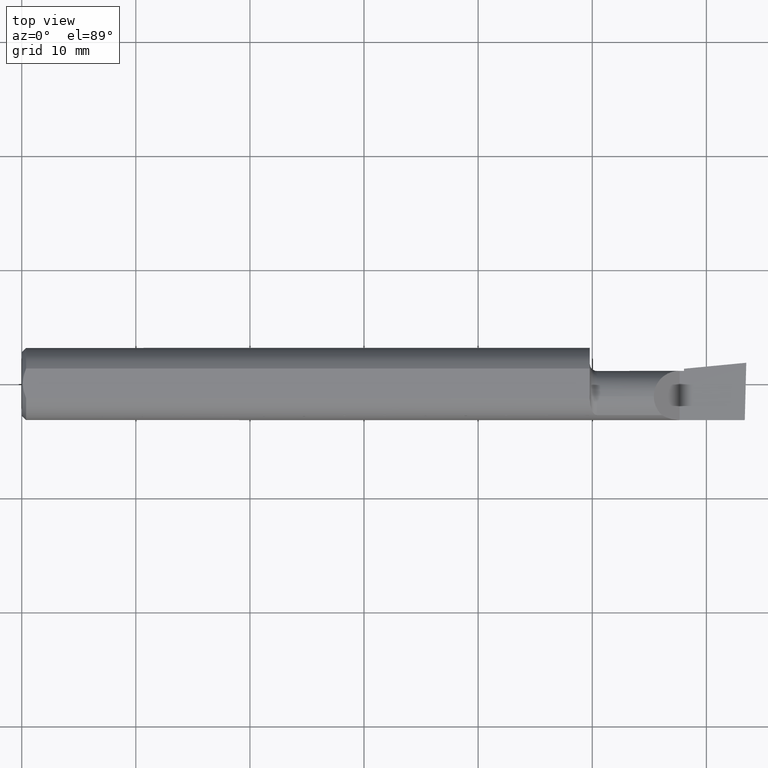
[diagram: clean part render]
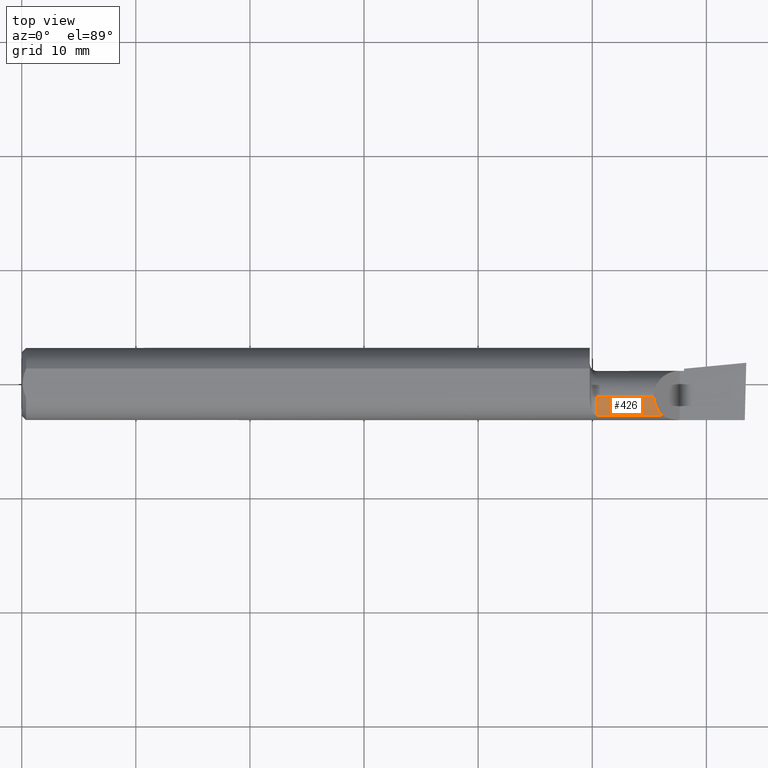
[diagram: same view with one face highlighted and labeled with its STEP entity id]
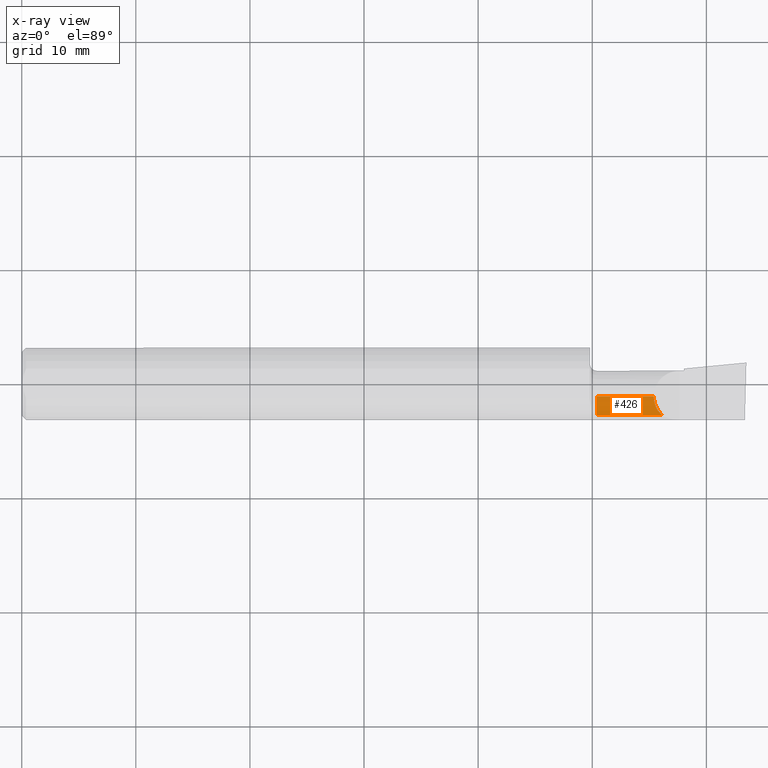
[diagram: x-ray of the same camera — body ghosted, the highlighted face saturated]
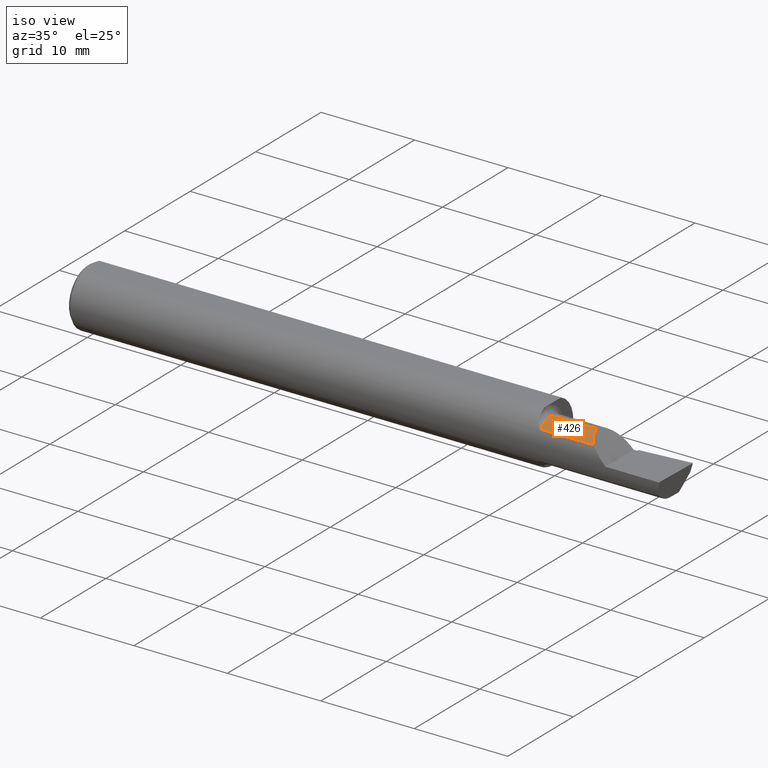
[diagram: same view with one face highlighted and labeled with its STEP entity id]
A machine part, top view. The second image highlights one B-rep face of the part: STEP entity #426.
The next image is the same camera in x-ray: the body ghosted, the highlighted face saturated — about 0% of this face is hidden behind the body in this view.
A second angle (iso view) of the same face is appended — the face is thin or edge-on in the first view.
In plain terms, the highlighted cylindrical surface (edge-blend (fillet) strip) has radius 2.2644 mm, axis along (-1, -0, -0).
Its self-contained STEP definition (entity closure, byte-faithful):
#5 = EDGE_CURVE ( 'NONE', #214, #277, #220, .T. ) ;
#6 = CARTESIAN_POINT ( 'NONE',  ( 1.985000000000000098, -0.04399999999999999745, 0.08914999999999995151 ) ) ;
#38 = CARTESIAN_POINT ( 'NONE',  ( 0.0000000000000000000, -0.04399999999999999745, 0.08914999999999997926 ) ) ;
#40 = CARTESIAN_POINT ( 'NONE',  ( 0.0000000000000000000, -0.04399999999999999745, 0.0000000000000000000 ) ) ;
#47 = CYLINDRICAL_SURFACE ( 'NONE', #397, 0.08914999999999997926 ) ;
#53 = EDGE_CURVE ( 'NONE', #387, #214, #674, .T. ) ;
#91 = LINE ( 'NONE', #38, #205 ) ;
#107 = EDGE_CURVE ( 'NONE', #277, #349, #91, .T. ) ;
#173 = DIRECTION ( 'NONE',  ( 0.0000000000000000000, 0.0000000000000000000, 1.000000000000000000 ) ) ;
#175 = DIRECTION ( 'NONE',  ( -1.000000000000000000, -0.0000000000000000000, -0.0000000000000000000 ) ) ;
#185 = AXIS2_PLACEMENT_3D ( 'NONE', #559, #175, #173 ) ;
#192 = EDGE_LOOP ( 'NONE', ( #408, #542, #479, #385 ) ) ;
#205 = VECTOR ( 'NONE', #221, 39.37007874015748143 ) ;
#214 = VERTEX_POINT ( 'NONE', #680 ) ;
#220 =( BOUNDED_CURVE ( )  B_SPLINE_CURVE ( 3, ( #311, #253, #370, #581 ),
 .UNSPECIFIED., .F., .T. ) 
 B_SPLINE_CURVE_WITH_KNOTS ( ( 4, 4 ),
 ( 5.469179596148854294, 6.283185307179586232 ),
 .UNSPECIFIED. ) 
 CURVE ( )  GEOMETRIC_REPRESENTATION_ITEM ( )  RATIONAL_B_SPLINE_CURVE ( ( 1.000000000000000000, 0.9455409277260484746, 0.9455409277260484746, 1.000000000000000000 ) ) 
 REPRESENTATION_ITEM ( '' )  );
#221 = DIRECTION ( 'NONE',  ( -1.000000000000000000, -0.0000000000000000000, -0.0000000000000000000 ) ) ;
#241 = EDGE_CURVE ( 'NONE', #387, #349, #421, .T. ) ;
#253 = CARTESIAN_POINT ( 'NONE',  ( 2.190699866855738698, -0.09173194857106663214, 0.07930013314426077875 ) ) ;
#277 = VERTEX_POINT ( 'NONE', #500 ) ;
#311 = CARTESIAN_POINT ( 'NONE',  ( 2.208790356734260829, -0.1088159090909090465, 0.06120964326573886255 ) ) ;
#349 = VERTEX_POINT ( 'NONE', #6 ) ;
#361 = CARTESIAN_POINT ( 'NONE',  ( 1.985000000000000098, -0.1088159090909094073, 0.06120964326573843234 ) ) ;
#370 = CARTESIAN_POINT ( 'NONE',  ( 2.180849999999999067, -0.06888227343086716914, 0.08914999999999999314 ) ) ;
#374 = DIRECTION ( 'NONE',  ( 1.000000000000000000, 0.0000000000000000000, 0.0000000000000000000 ) ) ;
#385 = ORIENTED_EDGE ( 'NONE', *, *, #53, .T. ) ;
#387 = VERTEX_POINT ( 'NONE', #361 ) ;
#397 = AXIS2_PLACEMENT_3D ( 'NONE', #40, #402, #728 ) ;
#402 = DIRECTION ( 'NONE',  ( -1.000000000000000000, -0.0000000000000000000, -0.0000000000000000000 ) ) ;
#408 = ORIENTED_EDGE ( 'NONE', *, *, #5, .T. ) ;
#421 = CIRCLE ( 'NONE', #185, 0.08914999999999995151 ) ;
#426 = ADVANCED_FACE ( 'NONE', ( #551 ), #47, .T. ) ;
#479 = ORIENTED_EDGE ( 'NONE', *, *, #241, .F. ) ;
#500 = CARTESIAN_POINT ( 'NONE',  ( 2.180849999999999511, -0.04399999999999999745, 0.08914999999999997926 ) ) ;
#540 = CARTESIAN_POINT ( 'NONE',  ( 2.135000000000000231, -0.1088159090909091575, 0.06120964326573871683 ) ) ;
#542 = ORIENTED_EDGE ( 'NONE', *, *, #107, .T. ) ;
#551 = FACE_OUTER_BOUND ( 'NONE', #192, .T. ) ;
#559 = CARTESIAN_POINT ( 'NONE',  ( 1.985000000000000098, -0.04399999999999999745, 0.0000000000000000000 ) ) ;
#581 = CARTESIAN_POINT ( 'NONE',  ( 2.180849999999999511, -0.04399999999999999745, 0.08914999999999997926 ) ) ;
#583 = VECTOR ( 'NONE', #374, 39.37007874015748143 ) ;
#674 = LINE ( 'NONE', #540, #583 ) ;
#680 = CARTESIAN_POINT ( 'NONE',  ( 2.208790356734260829, -0.1088159090909090465, 0.06120964326573886255 ) ) ;
#728 = DIRECTION ( 'NONE',  ( 0.0000000000000000000, 0.0000000000000000000, 1.000000000000000000 ) ) ;